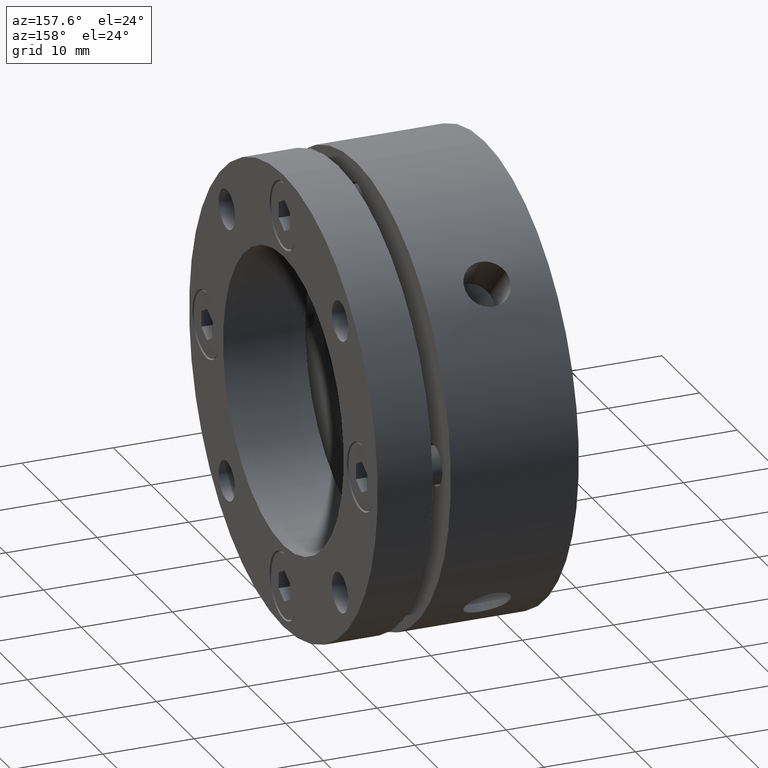
[diagram: clean part render]
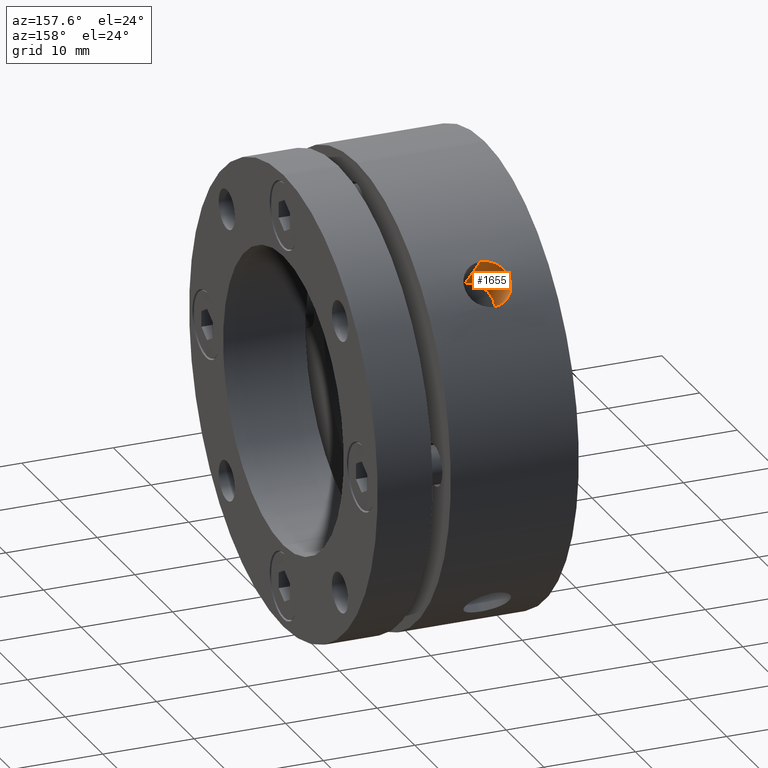
[diagram: same view with one face highlighted and labeled with its STEP entity id]
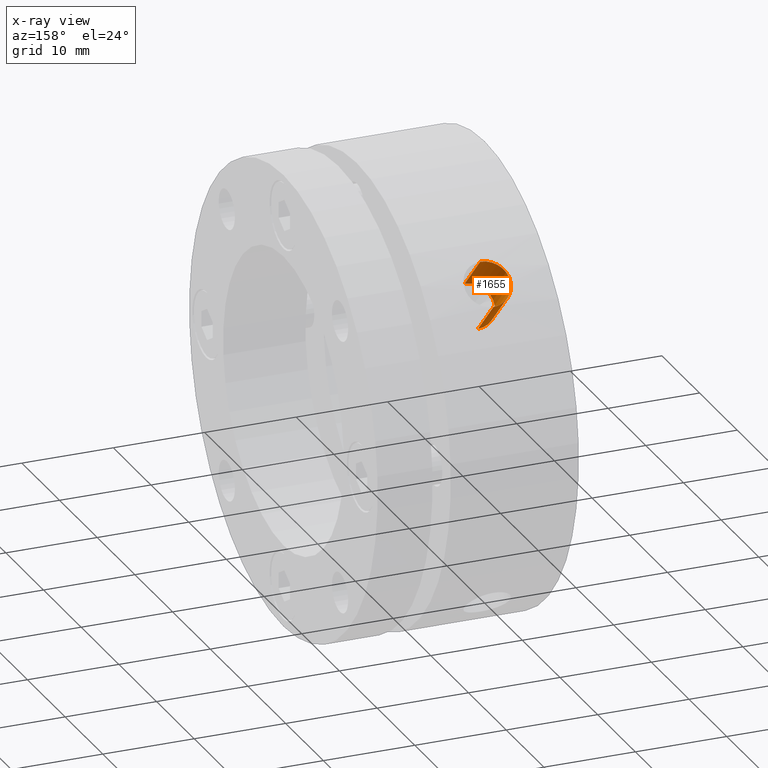
[diagram: x-ray of the same camera — body ghosted, the highlighted face saturated]
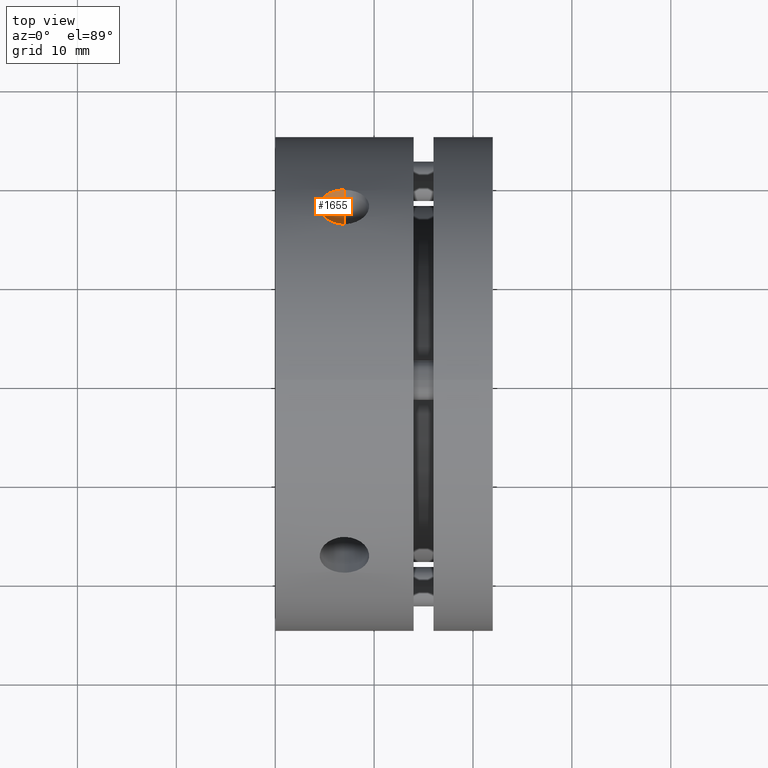
[diagram: same view with one face highlighted and labeled with its STEP entity id]
A machine part, auxiliary view. The second image highlights one B-rep face of the part: STEP entity #1655.
The next image is the same camera in x-ray: the body ghosted, the highlighted face saturated — about 0% of this face is hidden behind the body in this view.
A second angle (top view) of the same face is appended — the face is thin or edge-on in the first view.
In plain terms, the highlighted cylindrical surface (edge-blend (fillet) strip) has radius 2.5 mm, axis along (0, 0.7071, 0.7071).
Its self-contained STEP definition (entity closure, byte-faithful):
#80 = CARTESIAN_POINT ( 'NONE',  ( 6.674597976106357000, 19.34677855046518500, 15.83360968650258500 ) ) ;
#147 = AXIS2_PLACEMENT_3D ( 'NONE', #3000, #3001, #3002 ) ;
#172 = ORIENTED_EDGE ( 'NONE', *, *, #3449, .T. ) ;
#179 = ORIENTED_EDGE ( 'NONE', *, *, #3448, .F. ) ;
#186 = ORIENTED_EDGE ( 'NONE', *, *, #3450, .F. ) ;
#257 = ORIENTED_EDGE ( 'NONE', *, *, #516, .F. ) ;
#421 = VERTEX_POINT ( 'NONE', #1458 ) ;
#443 = VERTEX_POINT ( 'NONE', #1480 ) ;
#450 = VERTEX_POINT ( 'NONE', #1487 ) ;
#457 = VERTEX_POINT ( 'NONE', #1494 ) ;
#479 = AXIS2_PLACEMENT_3D ( 'NONE', #2591, #2589, #2587 ) ;
#516 = EDGE_CURVE ( 'NONE', #443, #457, #3040, .T. ) ;
#706 = FACE_OUTER_BOUND ( 'NONE', #1015, .T. ) ;
#715 = CYLINDRICAL_SURFACE ( 'NONE', #479, 2.500000000000000900 ) ;
#811 = LINE ( 'NONE', #2992, #818 ) ;
#814 = LINE ( 'NONE', #2987, #816 ) ;
#815 = CIRCLE ( 'NONE', #147, 2.500000000000000000 ) ;
#816 = VECTOR ( 'NONE', #2988, 1000.000000000000000 ) ;
#818 = VECTOR ( 'NONE', #2997, 1000.000000000000000 ) ;
#1015 = EDGE_LOOP ( 'NONE', ( #186, #172, #257, #179 ) ) ;
#1158 = CARTESIAN_POINT ( 'NONE',  ( 6.999999999999992900, 19.35682605230423200, 15.82129214637148900 ) ) ;
#1458 = CARTESIAN_POINT ( 'NONE',  ( 6.999999999999992900, 15.20279579314653200, 11.66726189194227500 ) ) ;
#1480 = CARTESIAN_POINT ( 'NONE',  ( 6.999999999999992900, 15.82129214637149900, 19.35682605230423200 ) ) ;
#1487 = CARTESIAN_POINT ( 'NONE',  ( 6.999999999999992900, 11.66726189194228000, 15.20279579314653000 ) ) ;
#1494 = CARTESIAN_POINT ( 'NONE',  ( 6.999999999999992900, 19.35682605230423200, 15.82129214637148900 ) ) ;
#1535 = CARTESIAN_POINT ( 'NONE',  ( 6.999999999999992900, 15.82129214637149900, 19.35682605230423200 ) ) ;
#1536 = CARTESIAN_POINT ( 'NONE',  ( 6.836860718872963500, 15.82129214637149200, 19.35682605230422800 ) ) ;
#1569 = CARTESIAN_POINT ( 'NONE',  ( 6.671146985958579900, 15.83401648847053300, 19.34644553614706600 ) ) ;
#1570 = CARTESIAN_POINT ( 'NONE',  ( 6.350521927896727100, 15.88370910469356500, 19.30566803085912400 ) ) ;
#1571 = CARTESIAN_POINT ( 'NONE',  ( 6.194674196945248600, 15.92040831870986000, 19.27549125980290200 ) ) ;
#1572 = CARTESIAN_POINT ( 'NONE',  ( 5.891953753427635800, 16.01729718229333300, 19.19505549133115700 ) ) ;
#1573 = CARTESIAN_POINT ( 'NONE',  ( 5.745750315483017600, 16.07762577699812600, 19.14466494310463700 ) ) ;
#1574 = CARTESIAN_POINT ( 'NONE',  ( 5.475066205600009900, 16.21628144711066700, 19.02736088996654800 ) ) ;
#1575 = CARTESIAN_POINT ( 'NONE',  ( 5.348860912580754200, 16.29509943638049000, 18.96004804002123500 ) ) ;
#1576 = CARTESIAN_POINT ( 'NONE',  ( 5.115477740438355300, 16.47183701861901600, 18.80670817962285200 ) ) ;
#1577 = CARTESIAN_POINT ( 'NONE',  ( 5.012170401896494100, 16.56681763514523100, 18.72321884640329200 ) ) ;
#1578 = CARTESIAN_POINT ( 'NONE',  ( 4.831219316698875100, 16.76885428893139700, 18.54248894736242200 ) ) ;
#1579 = CARTESIAN_POINT ( 'NONE',  ( 4.752947951516251400, 16.87717028382581200, 18.44407958177199800 ) ) ;
#1580 = CARTESIAN_POINT ( 'NONE',  ( 4.627560969069777200, 17.09944628323742700, 18.23819851889624700 ) ) ;
#1581 = CARTESIAN_POINT ( 'NONE',  ( 4.580290555429841400, 17.21287921232603000, 18.13125697514845700 ) ) ;
#1582 = CARTESIAN_POINT ( 'NONE',  ( 4.516346475691158900, 17.44394360092223600, 17.90906256409974500 ) ) ;
#1583 = CARTESIAN_POINT ( 'NONE',  ( 4.499882126369474400, 17.56210687049618700, 17.79324885867563600 ) ) ;
#1584 = CARTESIAN_POINT ( 'NONE',  ( 4.500119159786869700, 17.79576799633859000, 17.55955421125439700 ) ) ;
#1585 = CARTESIAN_POINT ( 'NONE',  ( 4.516456033872750600, 17.90947497733025200, 17.44351594325317100 ) ) ;
#1586 = CARTESIAN_POINT ( 'NONE',  ( 4.580233757562068900, 18.13102786845973900, 17.21311624486636700 ) ) ;
#1587 = CARTESIAN_POINT ( 'NONE',  ( 4.628458392928669300, 18.24000043098505600, 17.09752334307546900 ) ) ;
#1588 = CARTESIAN_POINT ( 'NONE',  ( 4.754157864849111600, 18.44573228489320400, 16.87536312686025000 ) ) ;
#1589 = CARTESIAN_POINT ( 'NONE',  ( 4.831037164329488000, 18.54232674500103800, 16.76903725391397200 ) ) ;
#1590 = CARTESIAN_POINT ( 'NONE',  ( 5.012621174044351600, 18.72364931098817600, 16.56633477932482600 ) ) ;
#1591 = CARTESIAN_POINT ( 'NONE',  ( 5.118216133836540400, 18.80862697575488300, 16.46963493351961800 ) ) ;
#1592 = CARTESIAN_POINT ( 'NONE',  ( 5.348828919287432100, 18.95990601898501600, 16.29525352081887800 ) ) ;
#1593 = CARTESIAN_POINT ( 'NONE',  ( 5.474671166017496500, 19.02724875105170100, 16.21641754207272600 ) ) ;
#1594 = CARTESIAN_POINT ( 'NONE',  ( 5.748014869720035900, 19.14558685220480100, 16.07653249360462100 ) ) ;
#1595 = CARTESIAN_POINT ( 'NONE',  ( 5.893380537485501900, 19.19545808625265000, 16.01681300666681200 ) ) ;
#1655 = ADVANCED_FACE ( 'NONE', ( #706 ), #715, .F. ) ;
#2587 = DIRECTION ( 'NONE',  ( 0.0000000000000000000, -0.7071067811865469100, 0.7071067811865482400 ) ) ;
#2589 = DIRECTION ( 'NONE',  ( 0.0000000000000000000, 0.7071067811865480200, 0.7071067811865470200 ) ) ;
#2591 = CARTESIAN_POINT ( 'NONE',  ( 6.999999999999992900, 15.55634918610404700, 15.55634918610404500 ) ) ;
#2987 = CARTESIAN_POINT ( 'NONE',  ( 6.999999999999992900, 13.78858223313768000, 17.32411613907041600 ) ) ;
#2988 = DIRECTION ( 'NONE',  ( 0.0000000000000000000, 0.7071067811865480200, 0.7071067811865470200 ) ) ;
#2992 = CARTESIAN_POINT ( 'NONE',  ( 6.999999999999992900, 17.32411613907041600, 13.78858223313767400 ) ) ;
#2997 = DIRECTION ( 'NONE',  ( 0.0000000000000000000, 0.7071067811865480200, 0.7071067811865470200 ) ) ;
#3000 = CARTESIAN_POINT ( 'NONE',  ( 6.999999999999992900, 13.43502884254440300, 13.43502884254440300 ) ) ;
#3001 = DIRECTION ( 'NONE',  ( 0.0000000000000000000, 0.7071067811865480200, 0.7071067811865470200 ) ) ;
#3002 = DIRECTION ( 'NONE',  ( 0.0000000000000000000, -0.7071067811865471300, 0.7071067811865477900 ) ) ;
#3025 = CARTESIAN_POINT ( 'NONE',  ( 6.351870894075361200, 19.30594391771895200, 15.88337386801491200 ) ) ;
#3026 = CARTESIAN_POINT ( 'NONE',  ( 6.194194462257711600, 19.27534023106150200, 15.92058946799506800 ) ) ;
#3040 = B_SPLINE_CURVE_WITH_KNOTS ( 'NONE', 3,
 ( #1535, #1536, #1569, #1570, #1571, #1572, #1573, #1574, #1575, #1576, #1577, #1578, #1579, #1580, #1581, #1582, #1583, #1584, #1585, #1586, #1587, #1588, #1589, #1590, #1591, #1592, #1593, #1594, #1595, #3026, #3025, #80, #3413, #1158 ),
 .UNSPECIFIED., .F., .F.,
 ( 4, 2, 2, 2, 2, 2, 2, 2, 2, 2, 2, 2, 2, 2, 2, 2, 4 ),
 ( 0.01173071967860992700, 0.01221942600983141200, 0.01270813234105289500, 0.01319683867227437900, 0.01368554500349586200, 0.01417425133471734600, 0.01466295766593882900, 0.01515166399716031400, 0.01564037032838179800, 0.01612907665960328100, 0.01661778299082476400, 0.01710648932204624600, 0.01759519565326773300, 0.01808390198448921500, 0.01857260831571069800, 0.01906131464693218400, 0.01955002097815366700 ),
 .UNSPECIFIED. ) ;
#3413 = CARTESIAN_POINT ( 'NONE',  ( 6.836860436520782800, 19.35682605230423200, 15.82129214637148900 ) ) ;
#3448 = EDGE_CURVE ( 'NONE', #450, #443, #814, .T. ) ;
#3449 = EDGE_CURVE ( 'NONE', #421, #457, #811, .T. ) ;
#3450 = EDGE_CURVE ( 'NONE', #421, #450, #815, .T. ) ;